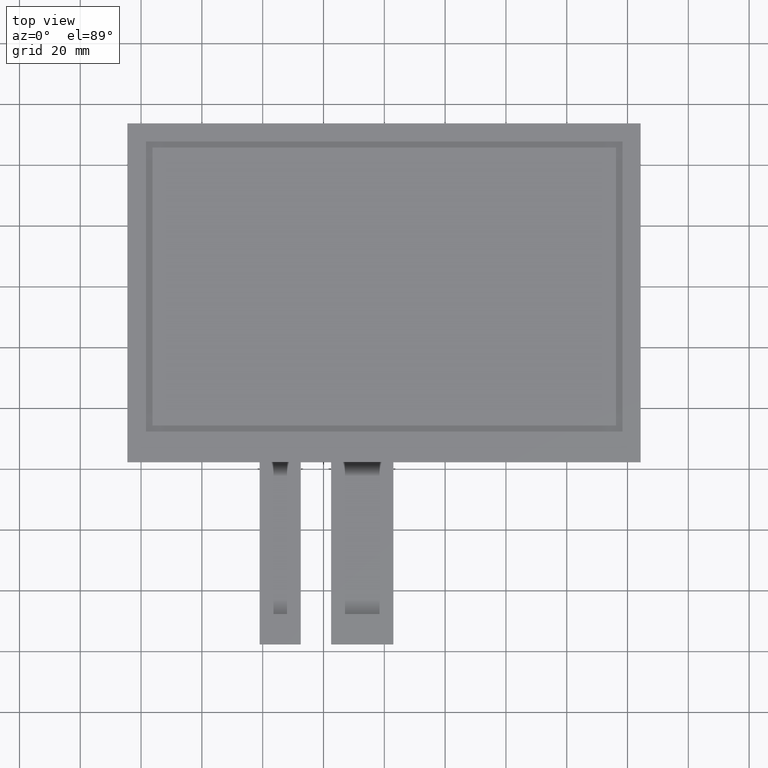
[diagram: clean part render]
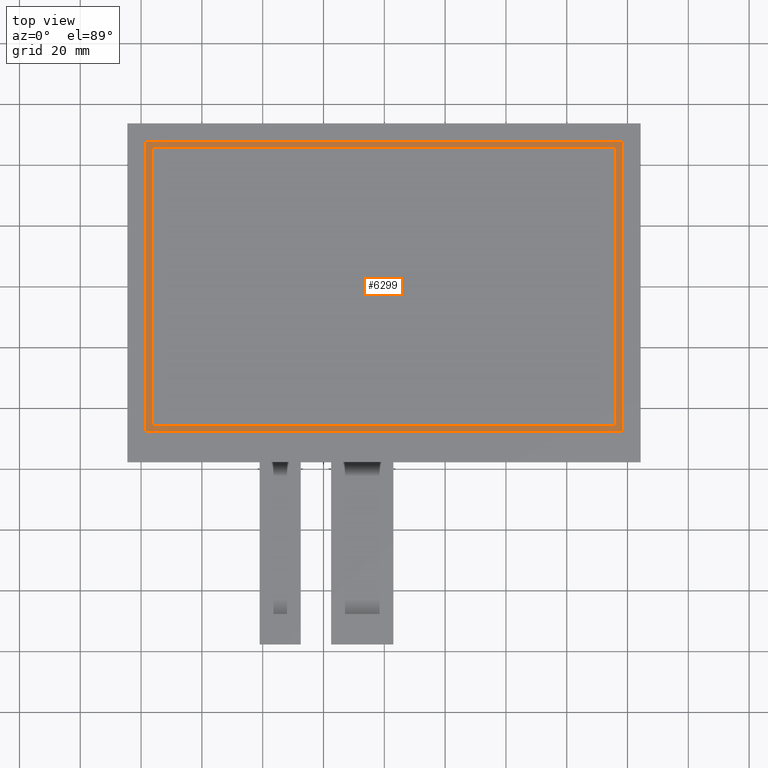
[diagram: same view with one face highlighted and labeled with its STEP entity id]
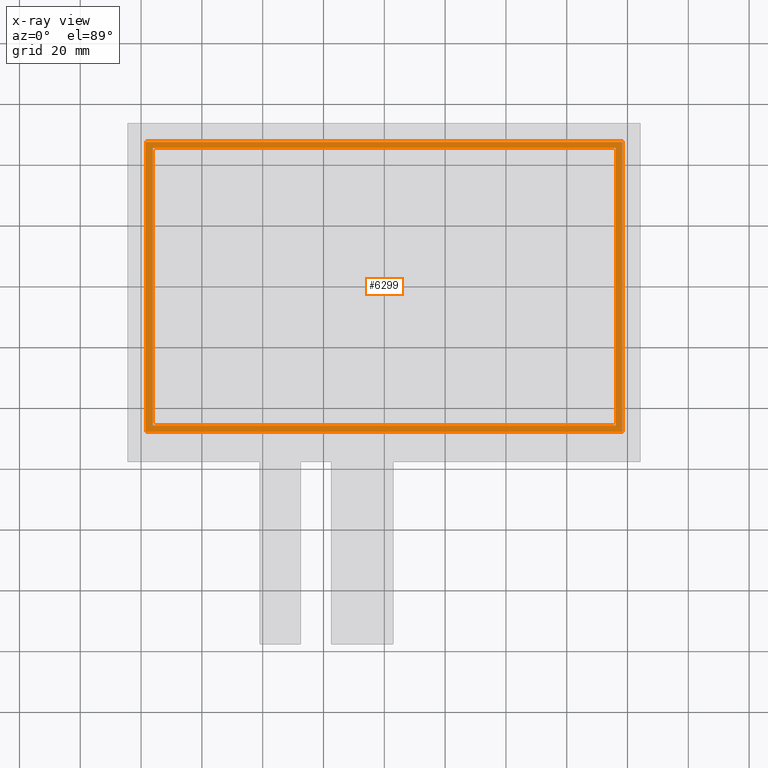
[diagram: x-ray of the same camera — body ghosted, the highlighted face saturated]
A machine part, top view. The second image highlights one B-rep face of the part: STEP entity #6299.
The next image is the same camera in x-ray: the body ghosted, the highlighted face saturated — about 0% of this face is hidden behind the body in this view.
In plain terms, the highlighted planar face has unit normal (0, 0, -1).
Its self-contained STEP definition (entity closure, byte-faithful):
#67=FACE_BOUND('',#966,.T.);
#361=PLANE('',#6629);
#663=FACE_OUTER_BOUND('',#965,.T.);
#965=EDGE_LOOP('',(#5953,#5954,#5955,#5956));
#966=EDGE_LOOP('',(#5957,#5958,#5959,#5960));
#1823=LINE('',#9853,#2703);
#1827=LINE('',#9860,#2707);
#1830=LINE('',#9866,#2710);
#1832=LINE('',#9869,#2712);
#1835=LINE('',#9877,#2715);
#1839=LINE('',#9884,#2719);
#1842=LINE('',#9890,#2722);
#1844=LINE('',#9893,#2724);
#2703=VECTOR('',#8075,10.);
#2707=VECTOR('',#8081,10.);
#2710=VECTOR('',#8086,10.);
#2712=VECTOR('',#8090,10.);
#2715=VECTOR('',#8095,10.);
#2719=VECTOR('',#8101,10.);
#2722=VECTOR('',#8106,10.);
#2724=VECTOR('',#8110,10.);
#3315=VERTEX_POINT('',#9850);
#3316=VERTEX_POINT('',#9852);
#3318=VERTEX_POINT('',#9858);
#3320=VERTEX_POINT('',#9864);
#3323=VERTEX_POINT('',#9874);
#3324=VERTEX_POINT('',#9876);
#3326=VERTEX_POINT('',#9882);
#3328=VERTEX_POINT('',#9888);
#4191=EDGE_CURVE('',#3315,#3316,#1823,.T.);
#4195=EDGE_CURVE('',#3318,#3315,#1827,.T.);
#4198=EDGE_CURVE('',#3320,#3318,#1830,.T.);
#4200=EDGE_CURVE('',#3316,#3320,#1832,.T.);
#4203=EDGE_CURVE('',#3323,#3324,#1835,.T.);
#4207=EDGE_CURVE('',#3326,#3323,#1839,.T.);
#4210=EDGE_CURVE('',#3328,#3326,#1842,.T.);
#4212=EDGE_CURVE('',#3324,#3328,#1844,.T.);
#5953=ORIENTED_EDGE('',*,*,#4212,.F.);
#5954=ORIENTED_EDGE('',*,*,#4203,.F.);
#5955=ORIENTED_EDGE('',*,*,#4207,.F.);
#5956=ORIENTED_EDGE('',*,*,#4210,.F.);
#5957=ORIENTED_EDGE('',*,*,#4200,.F.);
#5958=ORIENTED_EDGE('',*,*,#4191,.F.);
#5959=ORIENTED_EDGE('',*,*,#4195,.F.);
#5960=ORIENTED_EDGE('',*,*,#4198,.F.);
#6299=ADVANCED_FACE('',(#663,#67),#361,.F.);
#6629=AXIS2_PLACEMENT_3D('',#9894,#8111,#8112);
#8075=DIRECTION('',(1.,1.16558847729675E-16,0.));
#8081=DIRECTION('',(0.,-1.,0.));
#8086=DIRECTION('',(-1.,1.16558847729675E-16,0.));
#8090=DIRECTION('',(0.,1.,0.));
#8095=DIRECTION('',(-1.86298567320425E-16,1.,0.));
#8101=DIRECTION('',(-1.,-1.13360359885147E-16,0.));
#8106=DIRECTION('',(0.,-1.,0.));
#8110=DIRECTION('',(1.,0.,0.));
#8111=DIRECTION('center_axis',(0.,0.,-1.));
#8112=DIRECTION('ref_axis',(-1.,0.,0.));
#9850=CARTESIAN_POINT('',(-76.2,-45.72,-0.1));
#9852=CARTESIAN_POINT('',(76.2,-45.72,-0.1));
#9853=CARTESIAN_POINT('',(76.2,-45.72,-0.1));
#9858=CARTESIAN_POINT('',(-76.2,45.72,-0.1));
#9860=CARTESIAN_POINT('',(-76.2,-45.72,-0.1));
#9864=CARTESIAN_POINT('',(76.2,45.72,-0.1));
#9866=CARTESIAN_POINT('',(-76.2,45.72,-0.1));
#9869=CARTESIAN_POINT('',(76.2,45.72,-0.1));
#9874=CARTESIAN_POINT('',(-78.4,-47.72,-0.1));
#9876=CARTESIAN_POINT('',(-78.4,47.63,-0.1));
#9877=CARTESIAN_POINT('',(-78.4,47.63,-0.1));
#9882=CARTESIAN_POINT('',(78.3,-47.72,-0.1));
#9884=CARTESIAN_POINT('',(-78.4,-47.72,-0.1));
#9888=CARTESIAN_POINT('',(78.3,47.63,-0.1));
#9890=CARTESIAN_POINT('',(78.3,-47.72,-0.1));
#9893=CARTESIAN_POINT('',(78.3,47.63,-0.1));
#9894=CARTESIAN_POINT('Origin',(-0.0500000000000256,-0.0450000000000106,
-0.1));